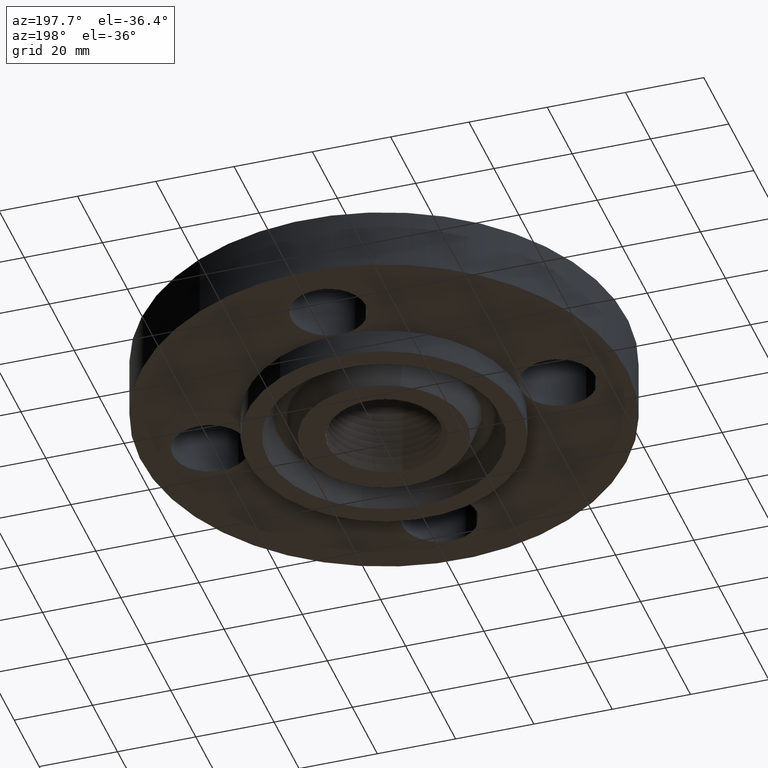
[diagram: clean part render]
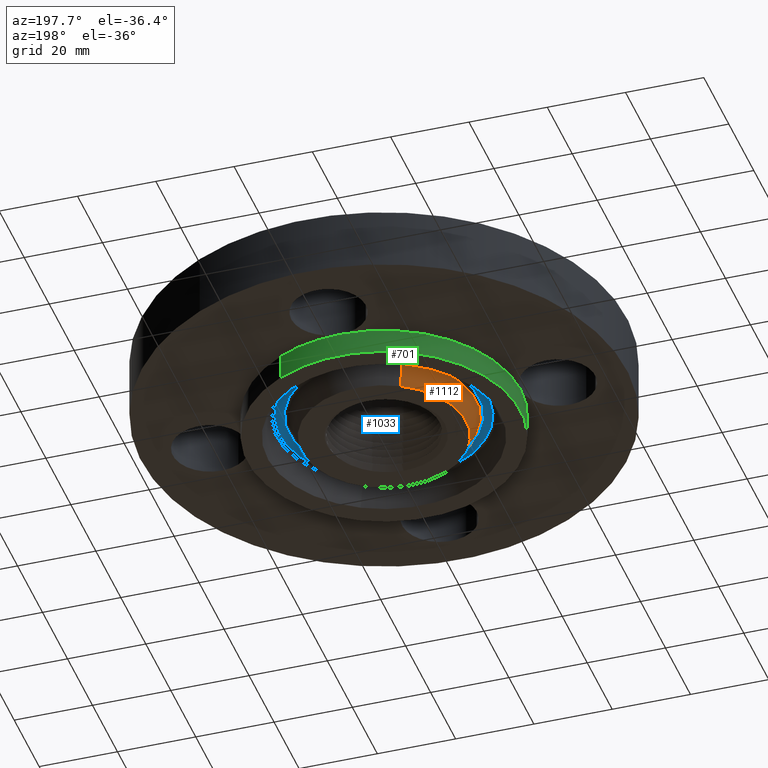
[diagram: same view with three faces highlighted in distinct colors, each labeled with its STEP entity id]
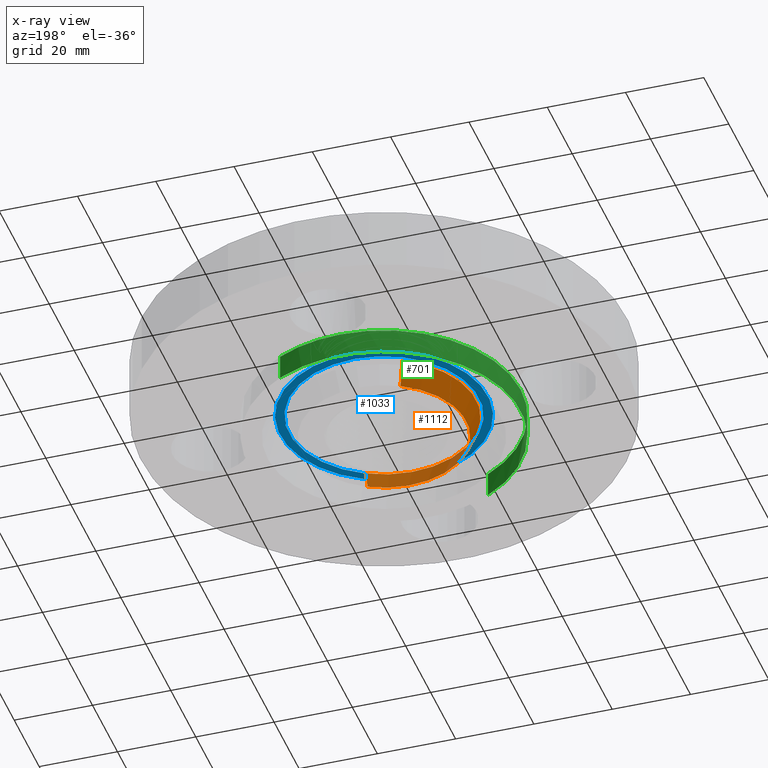
[diagram: x-ray of the same camera — body ghosted, the three highlighted faces saturated]
A machine part, auxiliary view with three faces highlighted in distinct colors.
The next image is the same camera in x-ray (body ghosted, the three faces saturated) — at least one of them is partly hidden behind the body in this view.
Their STEP definitions:

[orange] entity #1112 — the highlighted conical surface has half-angle 23 deg.
#181=AXIS2_PLACEMENT_3D('Circle Axis2P3D',#179,#180,$) ;
#1074=AXIS2_PLACEMENT_3D('Circle Axis2P3D',#1072,#1073,$) ;
#1087=AXIS2_PLACEMENT_3D('Cone Axis2P3D',#1084,#1085,#1086) ;
#174=CARTESIAN_POINT('Vertex',(-0.39701228852,0.726726119504,-0.250000000001)) ;
#176=CARTESIAN_POINT('Vertex',(0.39701228852,-0.726726119504,-0.250000000001)) ;
#179=CARTESIAN_POINT('Axis2P3D Location',(6.99353086378E-017,-1.04902962957E-016,-0.250000000001)) ;
#1050=CARTESIAN_POINT('Vertex',(0.44400745926,-0.812750202525,-0.0190701156784)) ;
#1057=CARTESIAN_POINT('Vertex',(-0.44400745926,0.812750202525,-0.0190701156784)) ;
#1072=CARTESIAN_POINT('Axis2P3D Location',(0.,0.,-0.0190701156784)) ;
#1084=CARTESIAN_POINT('Axis2P3D Location',(0.,0.,-0.310000000001)) ;
#1089=CARTESIAN_POINT('Line Origine',(-0.42050987389,0.769738161014,-0.13453505784)) ;
#1094=CARTESIAN_POINT('Line Origine',(0.42050987389,-0.769738161014,-0.13453505784)) ;
#180=DIRECTION('Axis2P3D Direction',(0.,0.,-0.0393700787402)) ;
#1073=DIRECTION('Axis2P3D Direction',(0.,0.,0.0393700787402)) ;
#1085=DIRECTION('Axis2P3D Direction',(0.,0.,0.0393700787402)) ;
#1086=DIRECTION('Axis2P3D XDirection',(-0.0188750212049,0.0345504945626,0.)) ;
#1090=DIRECTION('Vector Direction',(-0.00737505833565,0.0134999537303,0.0362403485611)) ;
#1095=DIRECTION('Vector Direction',(0.00737505833565,-0.0134999537303,0.0362403485611)) ;
#1091=VECTOR('Line Direction',#1090,0.0393700787402) ;
#1096=VECTOR('Line Direction',#1095,0.0393700787402) ;
#1107=ORIENTED_EDGE('',*,*,#1098,.F.) ;
#1108=ORIENTED_EDGE('',*,*,#1076,.F.) ;
#1109=ORIENTED_EDGE('',*,*,#1093,.T.) ;
#1110=ORIENTED_EDGE('',*,*,#183,.F.) ;
#1112=ADVANCED_FACE('PartBody',(#1111),#1088,.T.) ;
#182=CIRCLE('generated circle',#181,0.828100000003) ;
#1075=CIRCLE('generated circle',#1074,0.926123920208) ;
#1088=CONICAL_SURFACE('Cone',#1087,0.802631511031,0.401425727959) ;
#183=EDGE_CURVE('',#177,#175,#182,.T.) ;
#1076=EDGE_CURVE('',#1058,#1051,#1075,.T.) ;
#1093=EDGE_CURVE('',#1058,#175,#1092,.F.) ;
#1098=EDGE_CURVE('',#1051,#177,#1097,.F.) ;
#1106=EDGE_LOOP('',(#1107,#1108,#1109,#1110)) ;
#1111=FACE_OUTER_BOUND('',#1106,.T.) ;
#1092=LINE('Line',#1089,#1091) ;
#1097=LINE('Line',#1094,#1096) ;
#175=VERTEX_POINT('',#174) ;
#177=VERTEX_POINT('',#176) ;
#1051=VERTEX_POINT('',#1050) ;
#1058=VERTEX_POINT('',#1057) ;

[blue] entity #1033 — the highlighted planar face has unit normal (0, 0, -1).
#573=AXIS2_PLACEMENT_3D('Plane Axis2P3D',#570,#571,#572) ;
#955=AXIS2_PLACEMENT_3D('Circle Axis2P3D',#953,#954,$) ;
#1001=AXIS2_PLACEMENT_3D('Circle Axis2P3D',#999,#1000,$) ;
#1017=AXIS2_PLACEMENT_3D('Circle Axis2P3D',#1015,#1016,$) ;
#1026=AXIS2_PLACEMENT_3D('Circle Axis2P3D',#1024,#1025,$) ;
#570=CARTESIAN_POINT('Axis2P3D Location',(0.,1.37500000001,0.)) ;
#950=CARTESIAN_POINT('Vertex',(-0.501030504302,0.917130186328,-6.11933950581E-017)) ;
#953=CARTESIAN_POINT('Axis2P3D Location',(0.,0.,-6.11933950581E-017)) ;
#957=CARTESIAN_POINT('Vertex',(0.501030504302,-0.917130186328,-6.11933950581E-017)) ;
#999=CARTESIAN_POINT('Axis2P3D Location',(0.,0.,-6.11933950581E-017)) ;
#1015=CARTESIAN_POINT('Axis2P3D Location',(0.,0.,0.)) ;
#1019=CARTESIAN_POINT('Vertex',(0.457820572911,-0.83803493746,4.37095678986E-017)) ;
#1021=CARTESIAN_POINT('Vertex',(-0.457820572911,0.83803493746,4.37095678986E-017)) ;
#1024=CARTESIAN_POINT('Axis2P3D Location',(0.,0.,0.)) ;
#571=DIRECTION('Axis2P3D Direction',(0.,0.,-0.0393700787402)) ;
#572=DIRECTION('Axis2P3D XDirection',(0.0393700787402,0.,0.)) ;
#954=DIRECTION('Axis2P3D Direction',(0.,0.,0.0393700787402)) ;
#1000=DIRECTION('Axis2P3D Direction',(0.,0.,0.0393700787402)) ;
#1016=DIRECTION('Axis2P3D Direction',(0.,0.,-0.0393700787402)) ;
#1025=DIRECTION('Axis2P3D Direction',(0.,0.,-0.0393700787402)) ;
#1012=ORIENTED_EDGE('',*,*,#959,.F.) ;
#1013=ORIENTED_EDGE('',*,*,#1003,.F.) ;
#1030=ORIENTED_EDGE('',*,*,#1023,.T.) ;
#1031=ORIENTED_EDGE('',*,*,#1028,.T.) ;
#1032=FACE_BOUND('',#1029,.T.) ;
#1033=ADVANCED_FACE('PartBody',(#1014,#1032),#574,.T.) ;
#956=CIRCLE('generated circle',#955,1.04506427789) ;
#1002=CIRCLE('generated circle',#1001,1.04506427789) ;
#1018=CIRCLE('generated circle',#1017,0.954935722122) ;
#1027=CIRCLE('generated circle',#1026,0.954935722122) ;
#959=EDGE_CURVE('',#951,#958,#956,.T.) ;
#1003=EDGE_CURVE('',#958,#951,#1002,.T.) ;
#1023=EDGE_CURVE('',#1020,#1022,#1018,.F.) ;
#1028=EDGE_CURVE('',#1022,#1020,#1027,.F.) ;
#1011=EDGE_LOOP('',(#1012,#1013)) ;
#1029=EDGE_LOOP('',(#1030,#1031)) ;
#1014=FACE_OUTER_BOUND('',#1011,.T.) ;
#574=PLANE('',#573) ;
#951=VERTEX_POINT('',#950) ;
#958=VERTEX_POINT('',#957) ;
#1020=VERTEX_POINT('',#1019) ;
#1022=VERTEX_POINT('',#1021) ;

[green] entity #701 — the highlighted cylindrical surface (partial cylindrical patch) has radius 34.925 mm, axis along (0, 0, -1).
#349=AXIS2_PLACEMENT_3D('Circle Axis2P3D',#347,#348,$) ;
#607=AXIS2_PLACEMENT_3D('Circle Axis2P3D',#605,#606,$) ;
#633=AXIS2_PLACEMENT_3D('Circle Axis2P3D',#631,#632,$) ;
#638=AXIS2_PLACEMENT_3D('Circle Axis2P3D',#636,#637,$) ;
#672=AXIS2_PLACEMENT_3D('Cylinder Axis2P3D',#669,#670,#671) ;
#342=CARTESIAN_POINT('Vertex',(0.659210115583,1.2066760226,-0.250000000001)) ;
#344=CARTESIAN_POINT('Vertex',(-0.659210115583,-1.2066760226,-0.250000000001)) ;
#347=CARTESIAN_POINT('Axis2P3D Location',(0.,0.,-0.250000000001)) ;
#458=CARTESIAN_POINT('Vertex',(-1.37500000001,-2.79741234551E-016,0.)) ;
#602=CARTESIAN_POINT('Vertex',(0.659210115583,1.2066760226,0.)) ;
#605=CARTESIAN_POINT('Axis2P3D Location',(0.,0.,0.)) ;
#609=CARTESIAN_POINT('Vertex',(-5.47434258046E-015,1.37500000001,0.)) ;
#631=CARTESIAN_POINT('Axis2P3D Location',(0.,0.,0.)) ;
#636=CARTESIAN_POINT('Axis2P3D Location',(0.,0.,0.)) ;
#640=CARTESIAN_POINT('Vertex',(-0.659210115583,-1.2066760226,0.)) ;
#669=CARTESIAN_POINT('Axis2P3D Location',(0.,0.,0.375000000002)) ;
#674=CARTESIAN_POINT('Line Origine',(0.659210115583,1.2066760226,-0.125)) ;
#679=CARTESIAN_POINT('Line Origine',(-0.659210115583,-1.2066760226,-0.125)) ;
#348=DIRECTION('Axis2P3D Direction',(0.,0.,-0.0393700787402)) ;
#606=DIRECTION('Axis2P3D Direction',(0.,0.,-0.0393700787402)) ;
#632=DIRECTION('Axis2P3D Direction',(0.,0.,-0.0393700787402)) ;
#637=DIRECTION('Axis2P3D Direction',(0.,0.,-0.0393700787402)) ;
#670=DIRECTION('Axis2P3D Direction',(0.,0.,-0.0393700787402)) ;
#671=DIRECTION('Axis2P3D XDirection',(-0.0188750212049,-0.0345504945626,0.)) ;
#675=DIRECTION('Vector Direction',(0.,0.,-0.0393700787402)) ;
#680=DIRECTION('Vector Direction',(0.,0.,-0.0393700787402)) ;
#676=VECTOR('Line Direction',#675,0.0393700787402) ;
#681=VECTOR('Line Direction',#680,0.0393700787402) ;
#694=ORIENTED_EDGE('',*,*,#351,.F.) ;
#695=ORIENTED_EDGE('',*,*,#683,.T.) ;
#696=ORIENTED_EDGE('',*,*,#642,.T.) ;
#697=ORIENTED_EDGE('',*,*,#635,.T.) ;
#698=ORIENTED_EDGE('',*,*,#611,.T.) ;
#699=ORIENTED_EDGE('',*,*,#678,.F.) ;
#701=ADVANCED_FACE('PartBody',(#700),#673,.T.) ;
#350=CIRCLE('generated circle',#349,1.37500000001) ;
#608=CIRCLE('generated circle',#607,1.37500000001) ;
#634=CIRCLE('generated circle',#633,1.37500000001) ;
#639=CIRCLE('generated circle',#638,1.37500000001) ;
#673=CYLINDRICAL_SURFACE('generated cylinder',#672,1.37500000001) ;
#351=EDGE_CURVE('',#345,#343,#350,.T.) ;
#611=EDGE_CURVE('',#610,#603,#608,.T.) ;
#635=EDGE_CURVE('',#459,#610,#634,.T.) ;
#642=EDGE_CURVE('',#641,#459,#639,.T.) ;
#678=EDGE_CURVE('',#343,#603,#677,.F.) ;
#683=EDGE_CURVE('',#345,#641,#682,.F.) ;
#693=EDGE_LOOP('',(#694,#695,#696,#697,#698,#699)) ;
#700=FACE_OUTER_BOUND('',#693,.T.) ;
#677=LINE('Line',#674,#676) ;
#682=LINE('Line',#679,#681) ;
#343=VERTEX_POINT('',#342) ;
#345=VERTEX_POINT('',#344) ;
#459=VERTEX_POINT('',#458) ;
#603=VERTEX_POINT('',#602) ;
#610=VERTEX_POINT('',#609) ;
#641=VERTEX_POINT('',#640) ;